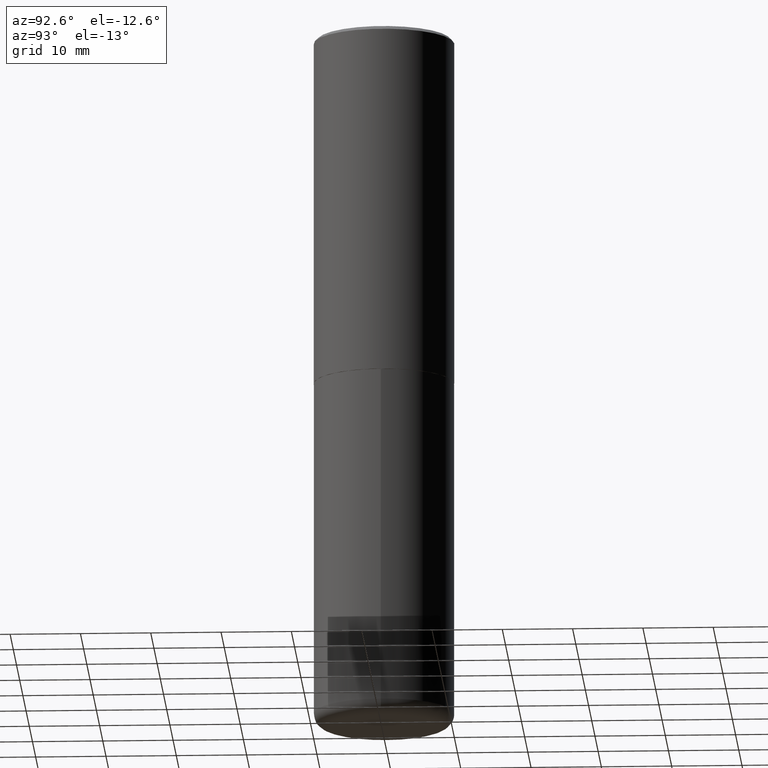
[diagram: clean part render]
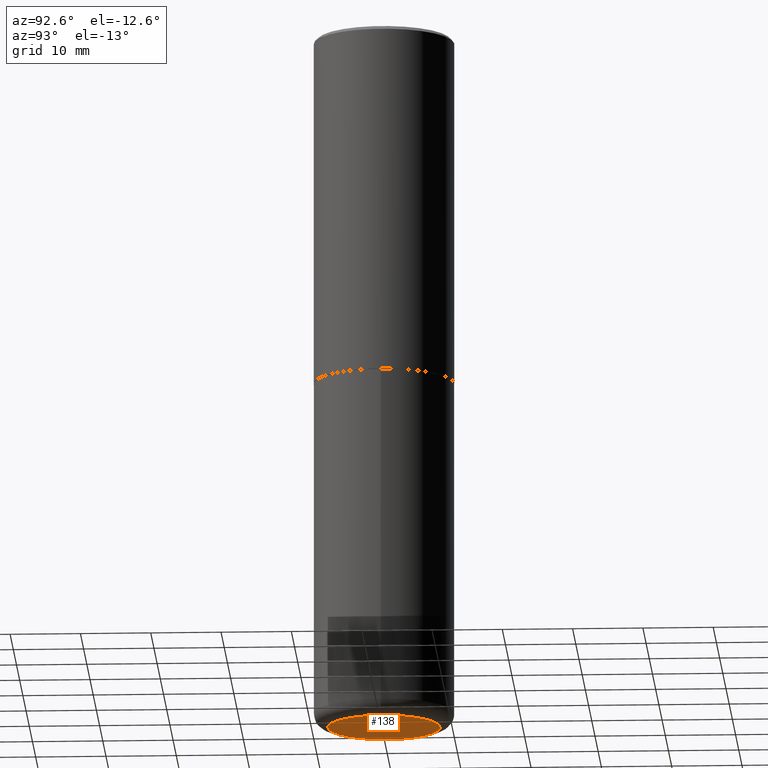
[diagram: same view with one face highlighted and labeled with its STEP entity id]
A machine part, auxiliary view. The second image highlights one B-rep face of the part: STEP entity #138.
In plain terms, the highlighted planar face has unit normal (0, -0, -1).
Its self-contained STEP definition (entity closure, byte-faithful):
#1 = AXIS2_PLACEMENT_3D ( 'NONE', #147, #344, #334 ) ;
#20 = DIRECTION ( 'NONE',  ( 2.438088387897960049E-29, -3.491481338843145188E-15, -1.000000000000000000 ) ) ;
#60 = DIRECTION ( 'NONE',  ( -2.445468806185136597E-29, 3.491481338843145583E-15, 1.000000000000000000 ) ) ;
#69 = EDGE_CURVE ( 'NONE', #144, #364, #275, .T. ) ;
#86 = CARTESIAN_POINT ( 'NONE',  ( 0.3150000000000000577, -1.594559527449663995E-14, -3.937000000000000721 ) ) ;
#95 = AXIS2_PLACEMENT_3D ( 'NONE', #208, #60, #282 ) ;
#111 = AXIS2_PLACEMENT_3D ( 'NONE', #372, #20, #152 ) ;
#138 = ADVANCED_FACE ( 'NONE', ( #148 ), #402, .T. ) ;
#144 = VERTEX_POINT ( 'NONE', #86 ) ;
#147 = CARTESIAN_POINT ( 'NONE',  ( 9.627810689950884790E-29, -1.374596203102546657E-14, -3.937000000000000721 ) ) ;
#148 = FACE_OUTER_BOUND ( 'NONE', #370, .T. ) ;
#152 = DIRECTION ( 'NONE',  ( -1.000000000000000000, 6.982962677686265922E-15, -4.876176775795935793E-29 ) ) ;
#158 = EDGE_CURVE ( 'NONE', #364, #144, #230, .T. ) ;
#170 = ORIENTED_EDGE ( 'NONE', *, *, #158, .F. ) ;
#208 = CARTESIAN_POINT ( 'NONE',  ( 9.627810689950884790E-29, -1.374596203102546657E-14, -3.937000000000000721 ) ) ;
#209 = CARTESIAN_POINT ( 'NONE',  ( -0.3150000000000000577, -1.109076405617607056E-14, -3.937000000000000721 ) ) ;
#230 = CIRCLE ( 'NONE', #1, 0.3150000000000000577 ) ;
#275 = CIRCLE ( 'NONE', #95, 0.3150000000000000577 ) ;
#282 = DIRECTION ( 'NONE',  ( 1.000000000000000000, -6.982962677686267499E-15, 0.000000000000000000 ) ) ;
#334 = DIRECTION ( 'NONE',  ( 1.000000000000000000, -6.982962677686267499E-15, 0.000000000000000000 ) ) ;
#344 = DIRECTION ( 'NONE',  ( -2.445468806185136597E-29, 3.491481338843145583E-15, 1.000000000000000000 ) ) ;
#364 = VERTEX_POINT ( 'NONE', #209 ) ;
#370 = EDGE_LOOP ( 'NONE', ( #380, #170 ) ) ;
#372 = CARTESIAN_POINT ( 'NONE',  ( 4.859318144497942927E-29, -2.057471476185479592E-14, -3.937000000000000277 ) ) ;
#380 = ORIENTED_EDGE ( 'NONE', *, *, #69, .F. ) ;
#402 = PLANE ( 'NONE',  #111 ) ;